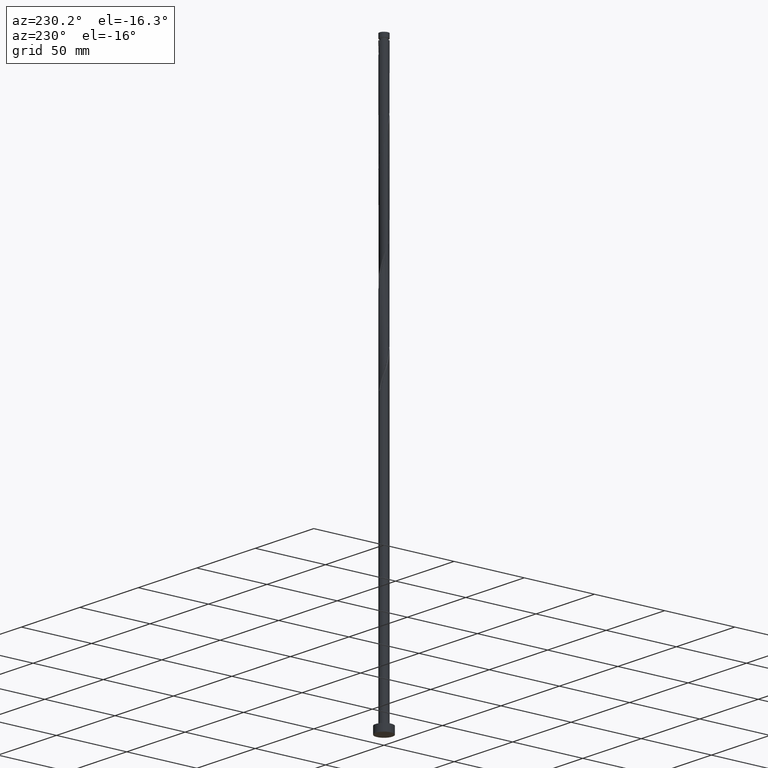
[diagram: clean part render]
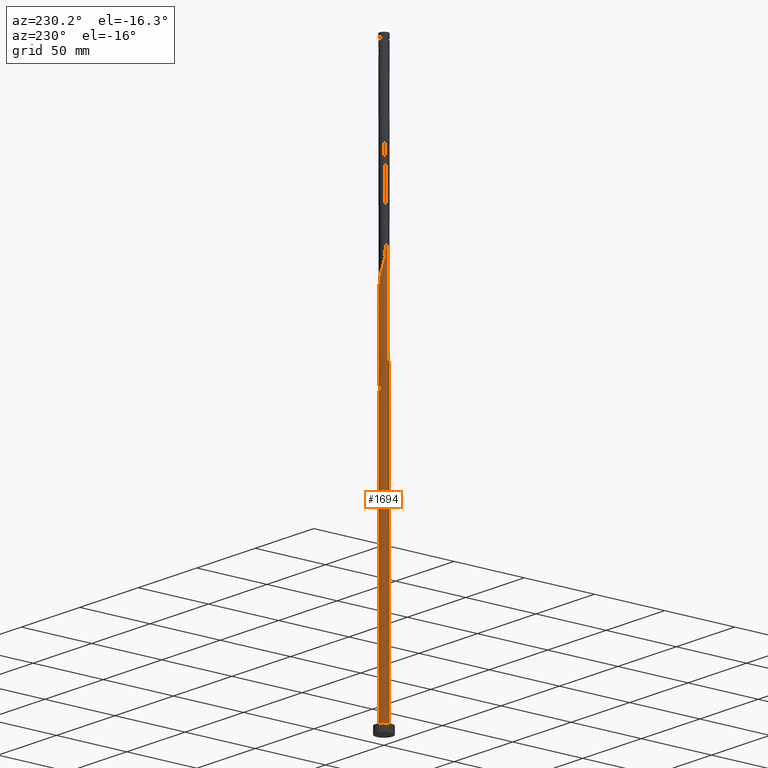
[diagram: same view with one face highlighted and labeled with its STEP entity id]
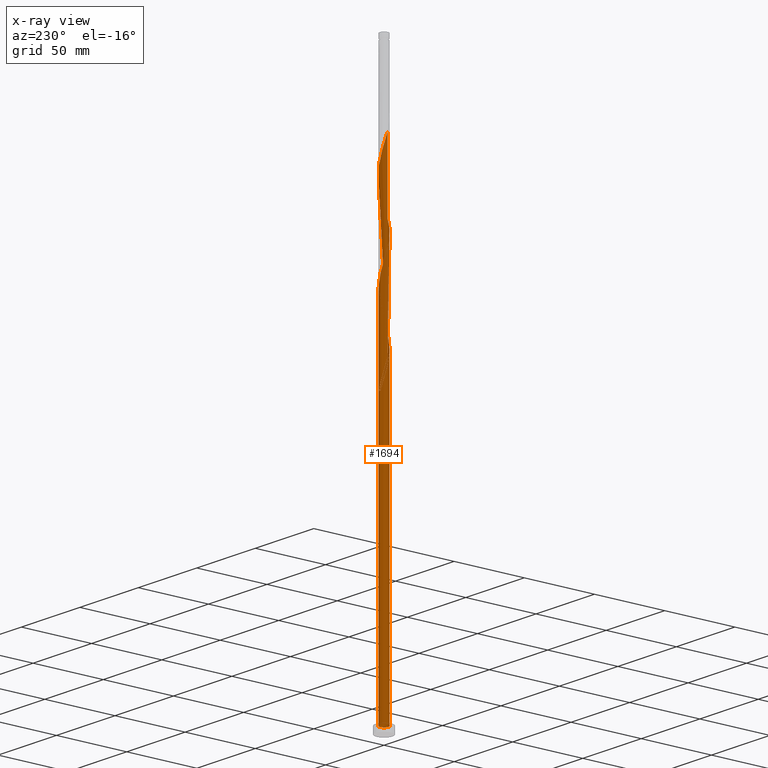
[diagram: x-ray of the same camera — body ghosted, the highlighted face saturated]
A machine part, auxiliary view. The second image highlights one B-rep face of the part: STEP entity #1694.
The next image is the same camera in x-ray: the body ghosted, the highlighted face saturated — about 0% of this face is hidden behind the body in this view.
In plain terms, the highlighted cylindrical surface (bore or boss wall) has radius 3.1 mm, axis along (-0, -0, -1).
Its self-contained STEP definition (entity closure, byte-faithful):
#11 = VERTEX_POINT ( 'NONE', #1555 ) ;
#22 = CARTESIAN_POINT ( 'NONE',  ( -1.533895827879467877, 2.713544600852583866, 332.3549402881141646 ) ) ;
#32 = ORIENTED_EDGE ( 'NONE', *, *, #630, .T. ) ;
#34 = CARTESIAN_POINT ( 'NONE',  ( -3.100000000000000089, -3.453083962173596742E-15, 214.4803835316356810 ) ) ;
#43 = DIRECTION ( 'NONE',  ( 0.000000000000000000, 1.000000000000000000, -7.162729191130041830E-14 ) ) ;
#50 = VERTEX_POINT ( 'NONE', #528 ) ;
#52 = CARTESIAN_POINT ( 'NONE',  ( -1.235047352811350363, 2.843353308386719291, 197.9104958436697927 ) ) ;
#60 = CARTESIAN_POINT ( 'NONE',  ( 0.000000000000000000, 0.000000000000000000, 400.0000000000000000 ) ) ;
#72 = CARTESIAN_POINT ( 'NONE',  ( -3.079939873403103601, 0.3520942717820079171, 209.0216069547808786 ) ) ;
#73 = CARTESIAN_POINT ( 'NONE',  ( 0.6168922110061073605, -3.038000000000004253, 229.0216069547809354 ) ) ;
#79 = DIRECTION ( 'NONE',  ( -0.000000000000000000, -0.000000000000000000, -1.000000000000000000 ) ) ;
#88 = CARTESIAN_POINT ( 'NONE',  ( -2.106734396482798033, -2.297353019080548453, 219.0216069547808786 ) ) ;
#96 = CARTESIAN_POINT ( 'NONE',  ( -2.538343745905351501, -1.809135633175533497, 283.4660513992252504 ) ) ;
#103 = CARTESIAN_POINT ( 'NONE',  ( 2.939431282200181794, -0.9847556738719636105, 306.7993847325587353 ) ) ;
#111 = CARTESIAN_POINT ( 'NONE',  ( -2.284767878866012847, 2.095193485027607050, 269.0216069547809070 ) ) ;
#122 = CARTESIAN_POINT ( 'NONE',  ( -3.116946472580176764, 0.02837954672371054490, 276.7993847325587353 ) ) ;
#136 = CARTESIAN_POINT ( 'NONE',  ( 3.079939873403103601, -0.3520942717820081946, 309.0216069547808502 ) ) ;
#147 = EDGE_LOOP ( 'NONE', ( #1766, #434, #736, #32, #500, #1788, #1500, #1800, #1333 ) ) ;
#149 = CARTESIAN_POINT ( 'NONE',  ( -3.054734153313960920, 0.6202902257648849060, 212.3549402881142214 ) ) ;
#172 = CARTESIAN_POINT ( 'NONE',  ( -2.538343745905346616, 1.809135633175531721, 207.9104958436697927 ) ) ;
#181 = CARTESIAN_POINT ( 'NONE',  ( -1.235047352811350363, 2.843353308386719291, 331.2438291770031356 ) ) ;
#189 = VERTEX_POINT ( 'NONE', #1707 ) ;
#201 = CARTESIAN_POINT ( 'NONE',  ( -3.054734153313966694, -0.6202902257648850171, 212.3549402881142498 ) ) ;
#211 = CARTESIAN_POINT ( 'NONE',  ( 1.799224998884012550, -2.524438433273993532, 233.4660513992253357 ) ) ;
#217 = CYLINDRICAL_SURFACE ( 'NONE', #230, 3.100000000000000089 ) ;
#224 = CARTESIAN_POINT ( 'NONE',  ( -2.284767878866012847, 2.095193485027607050, 202.3549402881142498 ) ) ;
#230 = AXIS2_PLACEMENT_3D ( 'NONE', #60, #245, #1521 ) ;
#234 = CARTESIAN_POINT ( 'NONE',  ( 0.9361988777432320719, -2.973162015920856049, 230.1327180658919360 ) ) ;
#242 = CARTESIAN_POINT ( 'NONE',  ( -1.533895827879467877, 2.713544600852583866, 265.6882736214475926 ) ) ;
#245 = DIRECTION ( 'NONE',  ( -0.000000000000000000, -0.000000000000000000, -1.000000000000000000 ) ) ;
#250 = CARTESIAN_POINT ( 'NONE',  ( -1.235047352811350363, 2.843353308386719291, 264.5771625103363931 ) ) ;
#262 = CARTESIAN_POINT ( 'NONE',  ( -2.859015293307162864, -1.241850338904815665, 281.2438291770030787 ) ) ;
#273 = CARTESIAN_POINT ( 'NONE',  ( 0.6721068444445544854, 3.026263767362457280, 257.9104958436697643 ) ) ;
#275 = CARTESIAN_POINT ( 'NONE',  ( 3.100000000000000089, 0.000000000000000000, 5.000000000000000000 ) ) ;
#283 = CARTESIAN_POINT ( 'NONE',  ( -0.02822408059735794644, -3.099871513671891066, 293.4660513992253073 ) ) ;
#286 = VECTOR ( 'NONE', #1885, 1000.000000000000000 ) ;
#295 = CARTESIAN_POINT ( 'NONE',  ( -3.100000000000004086, -1.539686788328476282E-15, 343.5628303779260477 ) ) ;
#304 = CARTESIAN_POINT ( 'NONE',  ( 0.2975855442689823160, 3.102837984079148459, 196.7993847325586501 ) ) ;
#314 = DIRECTION ( 'NONE',  ( 0.000000000000000000, 0.000000000000000000, 1.000000000000000000 ) ) ;
#326 = VERTEX_POINT ( 'NONE', #275 ) ;
#327 = CARTESIAN_POINT ( 'NONE',  ( -2.698679519606252963, 1.525492986040173138, 209.0216069547808786 ) ) ;
#337 = CARTESIAN_POINT ( 'NONE',  ( 0.3540337054636965575, 3.096905043264628343, 325.6882736214475926 ) ) ;
#346 = CARTESIAN_POINT ( 'NONE',  ( -3.100000000000000089, 0.000000000000000000, 400.0000000000000000 ) ) ;
#350 = CARTESIAN_POINT ( 'NONE',  ( 2.670455439008899035, -1.574378527631716596, 237.9104958436697359 ) ) ;
#362 = VERTEX_POINT ( 'NONE', #1876 ) ;
#370 = CARTESIAN_POINT ( 'NONE',  ( 0.000000000000000000, 0.000000000000000000, 5.000000000000000000 ) ) ;
#384 = CARTESIAN_POINT ( 'NONE',  ( -1.533895827879467877, 2.713544600852583866, 199.0216069547808786 ) ) ;
#385 = CARTESIAN_POINT ( 'NONE',  ( -0.02822408059735794644, -3.099871513671891066, 226.7993847325587069 ) ) ;
#390 = CARTESIAN_POINT ( 'NONE',  ( -2.956874723310564779, -0.9310702823348503410, 280.1327180658919929 ) ) ;
#395 = CARTESIAN_POINT ( 'NONE',  ( 2.956874723310565223, 0.9310702823348494528, 246.7993847325586785 ) ) ;
#405 = CARTESIAN_POINT ( 'NONE',  ( -1.844892520591753904, -2.491259036604711152, 286.7993847325586785 ) ) ;
#415 = CARTESIAN_POINT ( 'NONE',  ( 3.116946472580176764, -0.02837954672371159615, 310.1327180658920497 ) ) ;
#426 = CARTESIAN_POINT ( 'NONE',  ( 2.859015293307163752, 1.241850338904814111, 314.5771625103363931 ) ) ;
#434 = ORIENTED_EDGE ( 'NONE', *, *, #570, .F. ) ;
#437 = CARTESIAN_POINT ( 'NONE',  ( 0.02822408059735836972, 3.099871513671891066, 326.7993847325586785 ) ) ;
#451 = CARTESIAN_POINT ( 'NONE',  ( 2.322539071194075433, 2.053244326128039976, 317.9104958436697075 ) ) ;
#459 = CARTESIAN_POINT ( 'NONE',  ( -1.799224998884012772, 2.524438433273992199, 333.4660513992252504 ) ) ;
#482 = CARTESIAN_POINT ( 'NONE',  ( 2.538343745905351945, 1.809135633175532831, 316.7993847325585648 ) ) ;
#500 = ORIENTED_EDGE ( 'NONE', *, *, #1013, .T. ) ;
#528 = CARTESIAN_POINT ( 'NONE',  ( -3.100000000000004530, -3.841742763110859845E-15, 210.2294970445927333 ) ) ;
#530 = CIRCLE ( 'NONE', #557, 3.100000000000000089 ) ;
#532 = CARTESIAN_POINT ( 'NONE',  ( -2.670455439008899479, 1.574378527631716151, 271.2438291770030219 ) ) ;
#538 = CARTESIAN_POINT ( 'NONE',  ( 3.054734153313966694, 0.6202902257648846840, 312.3549402881142214 ) ) ;
#547 = CARTESIAN_POINT ( 'NONE',  ( 1.583050644700710441, 2.685165054128872075, 254.5771625103365068 ) ) ;
#557 = AXIS2_PLACEMENT_3D ( 'NONE', #1779, #314, #1055 ) ;
#558 = CARTESIAN_POINT ( 'NONE',  ( 1.533895827879467433, -2.713544600852584310, 299.0216069547809070 ) ) ;
#570 = EDGE_CURVE ( 'NONE', #50, #1753, #1552, .T. ) ;
#571 = CARTESIAN_POINT ( 'NONE',  ( -0.3540337054636961689, -3.096905043264628343, 292.3549402881142214 ) ) ;
#590 = CARTESIAN_POINT ( 'NONE',  ( -0.2975855442689797625, 3.102837984079152900, 327.9104958436698212 ) ) ;
#601 = CARTESIAN_POINT ( 'NONE',  ( -2.322539071194069660, 2.053244326128039532, 206.7993847325586785 ) ) ;
#607 = EDGE_CURVE ( 'NONE', #1753, #11, #875, .T. ) ;
#613 = CARTESIAN_POINT ( 'NONE',  ( -2.670455439008899479, 1.574378527631716151, 337.9104958436697643 ) ) ;
#621 = CARTESIAN_POINT ( 'NONE',  ( -2.284767878866012847, 2.095193485027607050, 335.6882736214475926 ) ) ;
#630 = EDGE_CURVE ( 'NONE', #362, #326, #530, .T. ) ;
#631 = LINE ( 'NONE', #346, #1478 ) ;
#638 = CARTESIAN_POINT ( 'NONE',  ( -1.799224998884012772, 2.524438433273992199, 200.1327180658920213 ) ) ;
#639 = CARTESIAN_POINT ( 'NONE',  ( 1.235047352811349697, -2.843353308386719291, 231.2438291770031071 ) ) ;
#650 = CARTESIAN_POINT ( 'NONE',  ( 3.079939873403103601, -0.3520942717820081946, 242.3549402881142214 ) ) ;
#667 = CARTESIAN_POINT ( 'NONE',  ( -1.583050644700709109, -2.685165054128872963, 221.2438291770030503 ) ) ;
#682 = CARTESIAN_POINT ( 'NONE',  ( 2.504981587843466251, -1.855054704359813122, 303.4660513992252504 ) ) ;
#683 = EDGE_CURVE ( 'NONE', #11, #1146, #1617, .T. ) ;
#692 = CARTESIAN_POINT ( 'NONE',  ( -1.286615314063058735, -2.820393772794579146, 289.0216069547809070 ) ) ;
#701 = CARTESIAN_POINT ( 'NONE',  ( -2.939431282200182238, 0.9847556738719625002, 273.4660513992253073 ) ) ;
#712 = CARTESIAN_POINT ( 'NONE',  ( -3.042933274226030438, 0.6758089968403059311, 274.5771625103364499 ) ) ;
#725 = CARTESIAN_POINT ( 'NONE',  ( -0.9361988777432332931, 2.973162015920853829, 330.1327180658918792 ) ) ;
#736 = ORIENTED_EDGE ( 'NONE', *, *, #1083, .T. ) ;
#737 = CARTESIAN_POINT ( 'NONE',  ( -2.956874723310560338, 0.9310702823348503410, 211.2438291770031356 ) ) ;
#747 = CARTESIAN_POINT ( 'NONE',  ( -2.835929290174332706, 1.293702350903619180, 339.0216069547809070 ) ) ;
#758 = CARTESIAN_POINT ( 'NONE',  ( 2.106734396482798477, 2.297353019080548453, 319.0216069547808502 ) ) ;
#768 = CARTESIAN_POINT ( 'NONE',  ( -0.6721068444445500445, 3.026263767362452839, 200.1327180658919929 ) ) ;
#789 = CARTESIAN_POINT ( 'NONE',  ( -1.844892520591753904, -2.491259036604711152, 220.1327180658919929 ) ) ;
#799 = CARTESIAN_POINT ( 'NONE',  ( 3.042933274226029550, -0.6758089968403078185, 241.2438291770031356 ) ) ;
#806 = CARTESIAN_POINT ( 'NONE',  ( -0.6168922110061071384, 3.038000000000004253, 195.6882736214475358 ) ) ;
#808 = CARTESIAN_POINT ( 'NONE',  ( -2.698679519606256960, -1.525492986040174692, 215.6882736214475074 ) ) ;
#815 = CARTESIAN_POINT ( 'NONE',  ( -2.322539071194074545, -2.053244326128040864, 217.9104958436697927 ) ) ;
#827 = CARTESIAN_POINT ( 'NONE',  ( 2.064554169888558555, -2.335332265695401421, 301.2438291770030219 ) ) ;
#832 = CARTESIAN_POINT ( 'NONE',  ( -3.079939873403103601, 0.3520942717820079171, 275.6882736214475358 ) ) ;
#842 = CARTESIAN_POINT ( 'NONE',  ( 2.859015293307163752, 1.241850338904814111, 247.9104958436697927 ) ) ;
#850 = CARTESIAN_POINT ( 'NONE',  ( 1.286615314063059179, 2.820393772794579590, 255.6882736214475926 ) ) ;
#863 = CARTESIAN_POINT ( 'NONE',  ( 0.9901799834254095822, 2.955622491460285328, 256.7993847325585648 ) ) ;
#875 = LINE ( 'NONE', #1642, #286 ) ;
#888 = CARTESIAN_POINT ( 'NONE',  ( 0.6168922110061080266, 3.037999999999998479, 195.6882736214475358 ) ) ;
#899 = CARTESIAN_POINT ( 'NONE',  ( -2.064554169888558555, 2.335332265695400977, 334.5771625103364499 ) ) ;
#908 = CARTESIAN_POINT ( 'NONE',  ( -0.6168922110061069164, 3.038000000000004253, 329.0216069547809639 ) ) ;
#918 = CARTESIAN_POINT ( 'NONE',  ( -2.504981587843466695, 1.855054704359813122, 336.7993847325586785 ) ) ;
#926 = DIRECTION ( 'NONE',  ( 1.000000000000000000, 0.000000000000000000, 0.000000000000000000 ) ) ;
#928 = CARTESIAN_POINT ( 'NONE',  ( -0.6721068444445524870, -3.026263767362457280, 224.5771625103364499 ) ) ;
#936 = DIRECTION ( 'NONE',  ( 0.000000000000000000, 0.000000000000000000, 1.000000000000000000 ) ) ;
#945 = EDGE_CURVE ( 'NONE', #189, #50, #1263, .T. ) ;
#951 = CARTESIAN_POINT ( 'NONE',  ( -0.9361988777432332931, 2.973162015920853829, 196.7993847325586785 ) ) ;
#952 = CARTESIAN_POINT ( 'NONE',  ( -2.859015293307162864, -1.241850338904815665, 214.5771625103364215 ) ) ;
#954 = CIRCLE ( 'NONE', #1840, 3.100000000000000089 ) ;
#956 = CARTESIAN_POINT ( 'NONE',  ( -2.835929290174332706, 1.293702350903619180, 205.6882736214475642 ) ) ;
#958 = EDGE_CURVE ( 'NONE', #189, #1146, #1321, .T. ) ;
#962 = CARTESIAN_POINT ( 'NONE',  ( 0.9361988777432320719, -2.973162015920856049, 296.7993847325586216 ) ) ;
#966 = CARTESIAN_POINT ( 'NONE',  ( 1.799224998884012550, -2.524438433273993532, 300.1327180658919929 ) ) ;
#975 = CARTESIAN_POINT ( 'NONE',  ( -0.2975855442689797625, 3.102837984079152900, 261.2438291770031356 ) ) ;
#983 = CARTESIAN_POINT ( 'NONE',  ( 2.538343745905351945, 1.809135633175532831, 250.1327180658920213 ) ) ;
#995 = CARTESIAN_POINT ( 'NONE',  ( 1.844892520591754348, 2.491259036604711152, 253.4660513992252788 ) ) ;
#1008 = CARTESIAN_POINT ( 'NONE',  ( -2.939431282200182238, 0.9847556738719625002, 340.1327180658919360 ) ) ;
#1013 = EDGE_CURVE ( 'NONE', #326, #362, #954, .T. ) ;
#1035 = CARTESIAN_POINT ( 'NONE',  ( -2.859015293307157535, 1.241850338904815221, 210.1327180658920213 ) ) ;
#1055 = DIRECTION ( 'NONE',  ( 1.000000000000000000, 0.000000000000000000, 0.000000000000000000 ) ) ;
#1062 = FACE_OUTER_BOUND ( 'NONE', #147, .T. ) ;
#1067 = CARTESIAN_POINT ( 'NONE',  ( -0.9901799834254091381, -2.955622491460285772, 223.4660513992253357 ) ) ;
#1077 = CARTESIAN_POINT ( 'NONE',  ( 0.2975855442689814279, -3.102837984079152456, 227.9104958436697643 ) ) ;
#1083 = EDGE_CURVE ( 'NONE', #50, #362, #631, .T. ) ;
#1085 = CARTESIAN_POINT ( 'NONE',  ( 0.000000000000000000, 0.000000000000000000, 195.6882736214477632 ) ) ;
#1093 = CARTESIAN_POINT ( 'NONE',  ( 1.533895827879467433, -2.713544600852584310, 232.3549402881142782 ) ) ;
#1102 = CARTESIAN_POINT ( 'NONE',  ( -2.504981587843466695, 1.855054704359813122, 270.1327180658919929 ) ) ;
#1108 = CARTESIAN_POINT ( 'NONE',  ( -2.322539071194074545, -2.053244326128040864, 284.5771625103364499 ) ) ;
#1114 = CARTESIAN_POINT ( 'NONE',  ( -0.9361988777432332931, 2.973162015920853829, 263.4660513992253073 ) ) ;
#1125 = CARTESIAN_POINT ( 'NONE',  ( 2.284767878866011959, -2.095193485027607050, 302.3549402881142782 ) ) ;
#1138 = CARTESIAN_POINT ( 'NONE',  ( 2.670455439008899035, -1.574378527631716596, 304.5771625103363363 ) ) ;
#1146 = VERTEX_POINT ( 'NONE', #1242 ) ;
#1147 = CARTESIAN_POINT ( 'NONE',  ( -3.099999999999999645, 0.1483163977889272178, 213.9718350060716148 ) ) ;
#1164 = CARTESIAN_POINT ( 'NONE',  ( -1.583050644700705778, 2.685165054128869855, 203.4660513992253357 ) ) ;
#1185 = CARTESIAN_POINT ( 'NONE',  ( -3.042933274226030438, 0.6758089968403059311, 341.2438291770030219 ) ) ;
#1207 = CARTESIAN_POINT ( 'NONE',  ( -3.100000000000004974, 0.1766185860839350197, 209.6239057352082114 ) ) ;
#1223 = CARTESIAN_POINT ( 'NONE',  ( -2.939431282200182238, 0.9847556738719625002, 206.7993847325586216 ) ) ;
#1224 = CARTESIAN_POINT ( 'NONE',  ( 3.116946472580176764, -0.02837954672371159615, 243.4660513992253357 ) ) ;
#1225 = AXIS2_PLACEMENT_3D ( 'NONE', #1085, #1807, #43 ) ;
#1234 = CARTESIAN_POINT ( 'NONE',  ( -1.286615314063058735, -2.820393772794579146, 222.3549402881141361 ) ) ;
#1242 = CARTESIAN_POINT ( 'NONE',  ( 0.6168922110061080266, 3.037999999999998479, 195.6882736214475358 ) ) ;
#1243 = CARTESIAN_POINT ( 'NONE',  ( -3.100000000000003642, -0.1483163977889299934, 210.7380455701567996 ) ) ;
#1248 = CARTESIAN_POINT ( 'NONE',  ( 2.106734396482798477, 2.297353019080548453, 252.3549402881142214 ) ) ;
#1254 = CARTESIAN_POINT ( 'NONE',  ( 3.042933274226029550, -0.6758089968403078185, 307.9104958436697643 ) ) ;
#1262 = CARTESIAN_POINT ( 'NONE',  ( 0.2975855442689814279, -3.102837984079152456, 294.5771625103365636 ) ) ;
#1263 =( BOUNDED_CURVE ( )  B_SPLINE_CURVE ( 2, ( #806, #951, #52, #384, #638, #1512, #224, #1824, #1673, #956, #1223, #1665, #72, #1207, #1538 ),
 .UNSPECIFIED., .F., .T. ) 
 B_SPLINE_CURVE_WITH_KNOTS ( ( 3, 2, 2, 2, 2, 2, 2, 3 ),
 ( 0.000000000000000000, 0.008333333333333303727, 0.01666666666666671848, 0.02500000000000002220, 0.03333333333333332593, 0.04166666666666662966, 0.05000000000000004441, 0.05452860127731162104 ),
 .UNSPECIFIED. ) 
 CURVE ( )  GEOMETRIC_REPRESENTATION_ITEM ( )  RATIONAL_B_SPLINE_CURVE ( ( 0.9090909090909620183, 0.9041108139712102920, 0.9090909090909620183, 0.9041108139712102920, 0.9090909090909620183, 0.9041108139712102920, 0.9090909090909620183, 0.9041108139712102920, 0.9090909090909620183, 0.9041108139712102920, 0.9090909090909620183, 0.9041108139712102920, 0.9090909090909620183, 0.9063845652765091243, 0.9066196499552503507 ) ) 
 REPRESENTATION_ITEM ( '' )  );
#1275 = CARTESIAN_POINT ( 'NONE',  ( -1.583050644700709109, -2.685165054128872963, 287.9104958436697075 ) ) ;
#1286 = CARTESIAN_POINT ( 'NONE',  ( -3.085840312947071506, -0.2959553395205868909, 277.9104958436697075 ) ) ;
#1301 = CARTESIAN_POINT ( 'NONE',  ( -3.100000000000003197, 0.1766185860839563082, 342.9572390685414689 ) ) ;
#1311 = CARTESIAN_POINT ( 'NONE',  ( -2.106734396482794036, 2.297353019080546233, 205.6882736214475642 ) ) ;
#1321 = CIRCLE ( 'NONE', #1225, 3.100000000000000089 ) ;
#1323 = CARTESIAN_POINT ( 'NONE',  ( -3.079939873403103601, 0.3520942717820079171, 342.3549402881142782 ) ) ;
#1333 = ORIENTED_EDGE ( 'NONE', *, *, #683, .F. ) ;
#1334 = CARTESIAN_POINT ( 'NONE',  ( 0.9901799834254095822, 2.955622491460285328, 323.4660513992254209 ) ) ;
#1344 = CARTESIAN_POINT ( 'NONE',  ( 1.286615314063059179, 2.820393772794579590, 322.3549402881143351 ) ) ;
#1366 = CARTESIAN_POINT ( 'NONE',  ( -2.538343745905351501, -1.809135633175533497, 216.7993847325587069 ) ) ;
#1376 = CARTESIAN_POINT ( 'NONE',  ( 2.504981587843466251, -1.855054704359813122, 236.7993847325586216 ) ) ;
#1398 = CARTESIAN_POINT ( 'NONE',  ( 2.284767878866011959, -2.095193485027607050, 235.6882736214475642 ) ) ;
#1403 = CARTESIAN_POINT ( 'NONE',  ( 0.6168922110061073605, -3.038000000000004253, 295.6882736214475358 ) ) ;
#1410 = CARTESIAN_POINT ( 'NONE',  ( -0.6721068444445524870, -3.026263767362457280, 291.2438291770030787 ) ) ;
#1419 = CARTESIAN_POINT ( 'NONE',  ( -2.064554169888558555, 2.335332265695400977, 267.9104958436697075 ) ) ;
#1430 = CARTESIAN_POINT ( 'NONE',  ( -1.799224998884012772, 2.524438433273992199, 266.7993847325586785 ) ) ;
#1444 = CARTESIAN_POINT ( 'NONE',  ( 1.235047352811349697, -2.843353308386719291, 297.9104958436697643 ) ) ;
#1457 = CARTESIAN_POINT ( 'NONE',  ( -3.085840312947066622, 0.2959553395205879456, 213.4660513992253073 ) ) ;
#1478 = VECTOR ( 'NONE', #79, 1000.000000000000000 ) ;
#1490 = CARTESIAN_POINT ( 'NONE',  ( -0.9901799834254059185, 2.955622491460281331, 201.2438291770030503 ) ) ;
#1500 = ORIENTED_EDGE ( 'NONE', *, *, #945, .F. ) ;
#1501 = CARTESIAN_POINT ( 'NONE',  ( 0.6721068444445544854, 3.026263767362457280, 324.5771625103363931 ) ) ;
#1512 = CARTESIAN_POINT ( 'NONE',  ( -2.064554169888558555, 2.335332265695400977, 201.2438291770030787 ) ) ;
#1521 = DIRECTION ( 'NONE',  ( -1.000000000000000000, 0.000000000000000000, 0.000000000000000000 ) ) ;
#1526 = CARTESIAN_POINT ( 'NONE',  ( 2.939431282200181794, -0.9847556738719636105, 240.1327180658920497 ) ) ;
#1534 = CARTESIAN_POINT ( 'NONE',  ( -0.3540337054636961689, -3.096905043264628343, 225.6882736214475358 ) ) ;
#1538 = CARTESIAN_POINT ( 'NONE',  ( -3.100000000000004086, -3.841742763110859845E-15, 210.2294970445927618 ) ) ;
#1550 = CARTESIAN_POINT ( 'NONE',  ( 0.02822408059735836972, 3.099871513671891066, 260.1327180658919929 ) ) ;
#1552 =( BOUNDED_CURVE ( )  B_SPLINE_CURVE ( 2, ( #1685, #1243, #1674, #201, #1826, #952, #808, #1366, #815, #88, #789, #667, #1234, #1067, #928, #1534, #385, #1077, #73, #234, #639, #1093, #211, #1808, #1398, #1376, #350, #1667, #1526, #799, #650, #1224, #1816, #1851, #395, #842, #1568, #983, #1846, #1248, #995, #547, #850, #863, #273, #1838, #1550, #975, #1578, #1114, #250, #242, #1430, #1419, #111, #1102, #532, #1693, #701, #712, #832, #122, #1286, #1874, #390, #262, #1709, #96, #1108, #1587, #405, #1275, #692, #1862, #1410, #571, #283, #1262, #1403, #962, #1444, #558, #966, #827, #1125, #682, #1138, #1719, #103, #1254, #136, #415, #1729, #538, #1700, #426, #1558, #482, #451, #758, #1602, #1740, #1344, #1334, #1501, #337, #437, #590, #908, #725, #181, #22, #459, #899, #621, #918, #613, #747, #1008, #1185, #1323, #1301, #295 ),
 .UNSPECIFIED., .F., .T. ) 
 B_SPLINE_CURVE_WITH_KNOTS ( ( 3, 2, 2, 2, 2, 2, 2, 2, 2, 2, 2, 2, 2, 2, 2, 2, 2, 2, 2, 2, 2, 2, 2, 2, 2, 2, 2, 2, 2, 2, 2, 2, 2, 2, 2, 2, 2, 2, 2, 2, 2, 2, 2, 2, 2, 2, 2, 2, 2, 2, 2, 2, 2, 2, 2, 2, 2, 2, 2, 2, 2, 3 ),
 ( 0.05452860127731162104, 0.05833333333333334814, 0.06666666666666665186, 0.07499999999999995559, 0.08333333333333337034, 0.09166666666666667407, 0.09999999999999997780, 0.1083333333333332815, 0.1166666666666666963, 0.1250000000000000000, 0.1333333333333333037, 0.1416666666666667185, 0.1500000000000000222, 0.1583333333333333259, 0.1666666666666666297, 0.1750000000000000444, 0.1833333333333333481, 0.1916666666666666519, 0.1999999999999999556, 0.2083333333333333703, 0.2166666666666666741, 0.2249999999999999778, 0.2333333333333332815, 0.2416666666666666963, 0.2500000000000000000, 0.2583333333333333037, 0.2666666666666667185, 0.2750000000000000222, 0.2833333333333333259, 0.2916666666666666297, 0.3000000000000000444, 0.3083333333333333481, 0.3166666666666666519, 0.3249999999999999556, 0.3333333333333333703, 0.3416666666666666741, 0.3499999999999999778, 0.3583333333333332815, 0.3666666666666666963, 0.3750000000000000000, 0.3833333333333333037, 0.3916666666666667185, 0.4000000000000000222, 0.4083333333333333259, 0.4166666666666666297, 0.4250000000000000444, 0.4333333333333333481, 0.4416666666666666519, 0.4499999999999999556, 0.4583333333333333703, 0.4666666666666666741, 0.4749999999999999778, 0.4833333333333332815, 0.4916666666666666963, 0.5000000000000000000, 0.5083333333333333037, 0.5166666666666666075, 0.5250000000000000222, 0.5333333333333333259, 0.5416666666666667407, 0.5500000000000000444, 0.5545286012773110729 ),
 .UNSPECIFIED. ) 
 CURVE ( )  GEOMETRIC_REPRESENTATION_ITEM ( )  RATIONAL_B_SPLINE_CURVE ( ( 0.9066196499552503507, 0.9068171577856631860, 0.9090909090909620183, 0.9041108139712102920, 0.9090909090909620183, 0.9041108139712102920, 0.9090909090909620183, 0.9041108139712102920, 0.9090909090909620183, 0.9041108139712102920, 0.9090909090909620183, 0.9041108139712102920, 0.9090909090909620183, 0.9041108139712102920, 0.9090909090909620183, 0.9041108139712102920, 0.9090909090909620183, 0.9041108139712102920, 0.9090909090909620183, 0.9041108139712102920, 0.9090909090909620183, 0.9041108139712102920, 0.9090909090909620183, 0.9041108139712102920, 0.9090909090909620183, 0.9041108139712102920, 0.9090909090909620183, 0.9041108139712102920, 0.9090909090909620183, 0.9041108139712102920, 0.9090909090909620183, 0.9041108139712102920, 0.9090909090909620183, 0.9041108139712102920, 0.9090909090909620183, 0.9041108139712102920, 0.9090909090909620183, 0.9041108139712102920, 0.9090909090909620183, 0.9041108139712102920, 0.9090909090909620183, 0.9041108139712102920, 0.9090909090909620183, 0.9041108139712102920, 0.9090909090909620183, 0.9041108139712102920, 0.9090909090909620183, 0.9041108139712102920, 0.9090909090909620183, 0.9041108139712102920, 0.9090909090909620183, 0.9041108139712102920, 0.9090909090909620183, 0.9041108139712102920, 0.9090909090909620183, 0.9041108139712102920, 0.9090909090909620183, 0.9041108139712102920, 0.9090909090909620183, 0.9041108139712102920, 0.9090909090909620183, 0.9041108139712102920, 0.9090909090909620183, 0.9041108139712102920, 0.9090909090909620183, 0.9041108139712102920, 0.9090909090909620183, 0.9041108139712102920, 0.9090909090909620183, 0.9041108139712102920, 0.9090909090909620183, 0.9041108139712102920, 0.9090909090909620183, 0.9041108139712102920, 0.9090909090909620183, 0.9041108139712102920, 0.9090909090909620183, 0.9041108139712102920, 0.9090909090909620183, 0.9041108139712102920, 0.9090909090909620183, 0.9041108139712102920, 0.9090909090909620183, 0.9041108139712102920, 0.9090909090909620183, 0.9041108139712102920, 0.9090909090909620183, 0.9041108139712102920, 0.9090909090909620183, 0.9041108139712102920, 0.9090909090909620183, 0.9041108139712102920, 0.9090909090909620183, 0.9041108139712102920, 0.9090909090909620183, 0.9041108139712102920, 0.9090909090909620183, 0.9041108139712102920, 0.9090909090909620183, 0.9041108139712102920, 0.9090909090909620183, 0.9041108139712102920, 0.9090909090909620183, 0.9041108139712102920, 0.9090909090909620183, 0.9041108139712102920, 0.9090909090909620183, 0.9041108139712102920, 0.9090909090909620183, 0.9041108139712102920, 0.9090909090909620183, 0.9041108139712102920, 0.9090909090909620183, 0.9041108139712102920, 0.9090909090909620183, 0.9041108139712102920, 0.9090909090909620183, 0.9041108139712102920, 0.9090909090909620183, 0.9041108139712102920, 0.9090909090909620183, 0.9063845652765094574, 0.9066196499552503507 ) ) 
 REPRESENTATION_ITEM ( '' )  );
#1555 = CARTESIAN_POINT ( 'NONE',  ( -3.100000000000000089, -3.453083962173596742E-15, 214.4803835316356810 ) ) ;
#1558 = CARTESIAN_POINT ( 'NONE',  ( 2.698679519606256960, 1.525492986040174470, 315.6882736214475358 ) ) ;
#1568 = CARTESIAN_POINT ( 'NONE',  ( 2.698679519606256960, 1.525492986040174470, 249.0216069547809070 ) ) ;
#1578 = CARTESIAN_POINT ( 'NONE',  ( -0.6168922110061069164, 3.038000000000004253, 262.3549402881142214 ) ) ;
#1587 = CARTESIAN_POINT ( 'NONE',  ( -2.106734396482798033, -2.297353019080548453, 285.6882736214475358 ) ) ;
#1602 = CARTESIAN_POINT ( 'NONE',  ( 1.844892520591754348, 2.491259036604711152, 320.1327180658921066 ) ) ;
#1612 = CARTESIAN_POINT ( 'NONE',  ( -1.286615314063056070, 2.820393772794575149, 202.3549402881142214 ) ) ;
#1617 =( BOUNDED_CURVE ( )  B_SPLINE_CURVE ( 2, ( #34, #1147, #1457, #149, #737, #1035, #327, #172, #601, #1311, #1895, #1164, #1612, #1490, #768, #1754, #1768, #304, #888 ),
 .UNSPECIFIED., .F., .T. ) 
 B_SPLINE_CURVE_WITH_KNOTS ( ( 3, 2, 2, 2, 2, 2, 2, 2, 2, 3 ),
 ( 0.9295286012773115170, 0.9333333333333333481, 0.9416666666666666519, 0.9499999999999999556, 0.9583333333333333703, 0.9666666666666666741, 0.9749999999999999778, 0.9833333333333332815, 0.9916666666666666963, 1.000000000000000000 ),
 .UNSPECIFIED. ) 
 CURVE ( )  GEOMETRIC_REPRESENTATION_ITEM ( )  RATIONAL_B_SPLINE_CURVE ( ( 0.9066196499552444665, 0.9068171577856571908, 0.9090909090909560231, 0.9041108139712042968, 0.9090909090909560231, 0.9041108139712042968, 0.9090909090909560231, 0.9041108139712042968, 0.9090909090909560231, 0.9041108139712042968, 0.9090909090909560231, 0.9041108139712042968, 0.9090909090909560231, 0.9041108139712042968, 0.9090909090909560231, 0.9041108139712042968, 0.9090909090909560231, 0.9041108139712042968, 0.9090909090909560231 ) ) 
 REPRESENTATION_ITEM ( '' )  );
#1639 = CARTESIAN_POINT ( 'NONE',  ( -3.100000000000004086, -1.539686788328476282E-15, 343.5628303779260477 ) ) ;
#1642 = CARTESIAN_POINT ( 'NONE',  ( -3.100000000000000089, 0.000000000000000000, 400.0000000000000000 ) ) ;
#1665 = CARTESIAN_POINT ( 'NONE',  ( -3.042933274226030438, 0.6758089968403059311, 207.9104958436697359 ) ) ;
#1667 = CARTESIAN_POINT ( 'NONE',  ( 2.835929290174332706, -1.293702350903619624, 239.0216069547808218 ) ) ;
#1673 = CARTESIAN_POINT ( 'NONE',  ( -2.670455439008899479, 1.574378527631716151, 204.5771625103364215 ) ) ;
#1674 = CARTESIAN_POINT ( 'NONE',  ( -3.085840312947071506, -0.2959553395205868909, 211.2438291770031071 ) ) ;
#1685 = CARTESIAN_POINT ( 'NONE',  ( -3.100000000000004086, -3.841742763110859845E-15, 210.2294970445927618 ) ) ;
#1693 = CARTESIAN_POINT ( 'NONE',  ( -2.835929290174332706, 1.293702350903619180, 272.3549402881141077 ) ) ;
#1694 = ADVANCED_FACE ( 'NONE', ( #1062 ), #217, .T. ) ;
#1700 = CARTESIAN_POINT ( 'NONE',  ( 2.956874723310565223, 0.9310702823348494528, 313.4660513992253641 ) ) ;
#1707 = CARTESIAN_POINT ( 'NONE',  ( -0.6168922110061070274, 3.038000000000004253, 195.6882736214475358 ) ) ;
#1709 = CARTESIAN_POINT ( 'NONE',  ( -2.698679519606256960, -1.525492986040174692, 282.3549402881142782 ) ) ;
#1719 = CARTESIAN_POINT ( 'NONE',  ( 2.835929290174332706, -1.293702350903619624, 305.6882736214476495 ) ) ;
#1729 = CARTESIAN_POINT ( 'NONE',  ( 3.085840312947071951, 0.2959553395205851700, 311.2438291770030787 ) ) ;
#1740 = CARTESIAN_POINT ( 'NONE',  ( 1.583050644700710441, 2.685165054128872075, 321.2438291770031356 ) ) ;
#1753 = VERTEX_POINT ( 'NONE', #1639 ) ;
#1754 = CARTESIAN_POINT ( 'NONE',  ( -0.3540337054636947256, 3.096905043264625235, 199.0216069547808786 ) ) ;
#1766 = ORIENTED_EDGE ( 'NONE', *, *, #607, .F. ) ;
#1768 = CARTESIAN_POINT ( 'NONE',  ( -0.02822408059735607988, 3.099871513671887069, 197.9104958436697927 ) ) ;
#1779 = CARTESIAN_POINT ( 'NONE',  ( 0.000000000000000000, 0.000000000000000000, 5.000000000000000000 ) ) ;
#1788 = ORIENTED_EDGE ( 'NONE', *, *, #1083, .F. ) ;
#1800 = ORIENTED_EDGE ( 'NONE', *, *, #958, .T. ) ;
#1807 = DIRECTION ( 'NONE',  ( -9.940283583934129482E-30, -6.715058616684423761E-14, -1.000000000000000000 ) ) ;
#1808 = CARTESIAN_POINT ( 'NONE',  ( 2.064554169888558555, -2.335332265695401421, 234.5771625103364499 ) ) ;
#1816 = CARTESIAN_POINT ( 'NONE',  ( 3.085840312947071951, 0.2959553395205851700, 244.5771625103364784 ) ) ;
#1824 = CARTESIAN_POINT ( 'NONE',  ( -2.504981587843466695, 1.855054704359813122, 203.4660513992253641 ) ) ;
#1826 = CARTESIAN_POINT ( 'NONE',  ( -2.956874723310564779, -0.9310702823348503410, 213.4660513992253641 ) ) ;
#1838 = CARTESIAN_POINT ( 'NONE',  ( 0.3540337054636965575, 3.096905043264628343, 259.0216069547809070 ) ) ;
#1840 = AXIS2_PLACEMENT_3D ( 'NONE', #370, #936, #926 ) ;
#1846 = CARTESIAN_POINT ( 'NONE',  ( 2.322539071194075433, 2.053244326128039976, 251.2438291770031071 ) ) ;
#1851 = CARTESIAN_POINT ( 'NONE',  ( 3.054734153313966694, 0.6202902257648846840, 245.6882736214475358 ) ) ;
#1862 = CARTESIAN_POINT ( 'NONE',  ( -0.9901799834254091381, -2.955622491460285772, 290.1327180658919929 ) ) ;
#1874 = CARTESIAN_POINT ( 'NONE',  ( -3.054734153313966694, -0.6202902257648850171, 279.0216069547807933 ) ) ;
#1876 = CARTESIAN_POINT ( 'NONE',  ( -3.100000000000000089, 0.000000000000000000, 5.000000000000000000 ) ) ;
#1885 = DIRECTION ( 'NONE',  ( -0.000000000000000000, -0.000000000000000000, -1.000000000000000000 ) ) ;
#1895 = CARTESIAN_POINT ( 'NONE',  ( -1.844892520591749463, 2.491259036604708932, 204.5771625103364215 ) ) ;